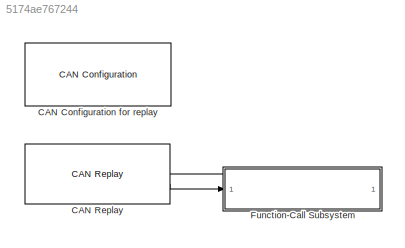
MODEL slx_5174ae767244
KIND model
CONFIG AbsTol = auto
CONFIG EnableMultiTasking = on
CONFIG FixedStep = Ts
CONFIG MaxStep = auto
CONFIG MinStep = auto
CONFIG RelTol = 1e-3
CONFIG SampleTimeConstraint = Unconstrained
CONFIG SolverName = FixedStepDiscrete
CONFIG StartTime = startTime
CONFIG StopTime = endTime
BLOCK [Reference] CAN Configuration for replay  REF=canlib/CAN Configuration
  SourceBlock = canlib/CAN Configuration
  SourceType = CAN Configuration
BLOCK [Reference] CAN Replay  REF=canlib/CAN Replay
  SourceBlock = canlib/CAN Replay
  SourceType = CAN Replay
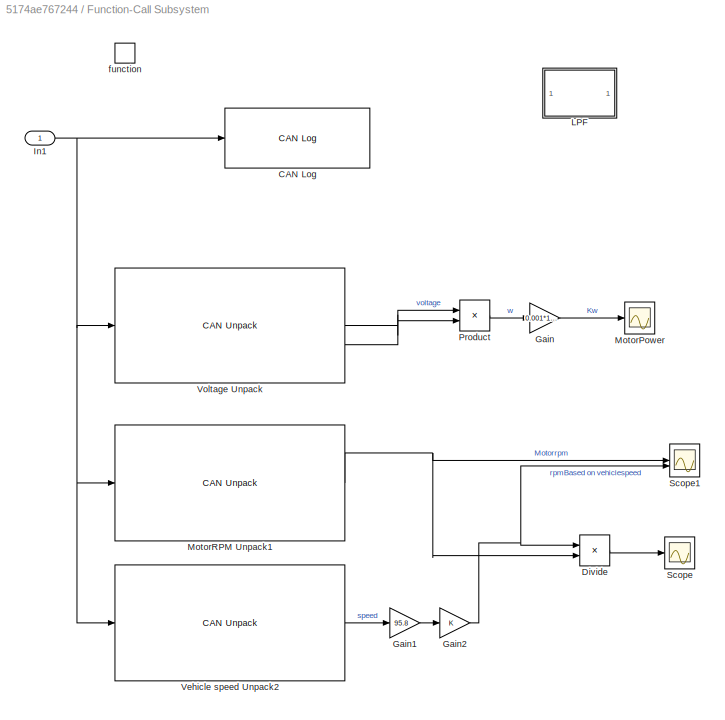
BLOCK [SubSystem] Function-Call Subsystem
  TreatAsAtomicUnit = on
BLOCK [Reference] Function-Call Subsystem/CAN Log  REF=canlib/CAN Log
  Commented = on
  SourceBlock = canlib/CAN Log
  SourceType = CAN Log
BLOCK [Product] Function-Call Subsystem/Divide
  Inputs = */
BLOCK [Gain] Function-Call Subsystem/Gain
  Gain = 0.001*1.732
BLOCK [Gain] Function-Call Subsystem/Gain1
  Gain = 95.8
BLOCK [Gain] Function-Call Subsystem/Gain2
BLOCK [Inport] Function-Call Subsystem/In1
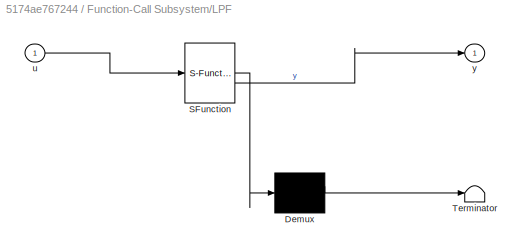
BLOCK [SubSystem] Function-Call Subsystem/LPF
  Commented = on
  ErrorFcn = Stateflow.Translate.translate
  PermitHierarchicalResolution = ExplicitOnly
  SFBlockType = MATLAB Function
  TreatAsAtomicUnit = on
BLOCK [Demux] Function-Call Subsystem/LPF/ Demux 
  Outputs = 1
BLOCK [S-Function] Function-Call Subsystem/LPF/ SFunction 
  EnableBusSupport = on
  FunctionName = sf_sfun
  PortCounts = [1 2]
  SFcnIsStateOwnerBlock = off
  SFunctionDeploymentMode = off
  Tag = Stateflow S-Function 2
BLOCK [Terminator] Function-Call Subsystem/LPF/ Terminator 
BLOCK [Inport] Function-Call Subsystem/LPF/u
BLOCK [Outport] Function-Call Subsystem/LPF/y
BLOCK [Scope] Function-Call Subsystem/MotorPower
  Floating = off
  NumInputPorts = 1
  ScopeSpecificationString = Simulink.scopes.TimeScopeBlockCfg('CurrentConfiguration', extmgr.ConfigurationSet(extmgr.Configuration('Core','General UI',true),extmgr.Configuration('Core','Source UI',true),extmgr.Configuration('Sources','WiredSimulink',true,'DataLoggingVariableName','ScopeData1'),extmgr.Configuration('Visuals','Time Domain',true,'SerializedDisplays',{struct('MinYLimReal','-33.40162','MaxYLimReal','300.61458','Y...<+1844ch>
BLOCK [Reference] Function-Call Subsystem/MotorRPM Unpack1  REF=canmsglib/CAN Unpack
  LibrarySourceBlock = canlib/CAN Unpack
  SourceBlock = canmsglib/CAN Unpack
  SourceType = CAN Unpack
BLOCK [Product] Function-Call Subsystem/Product
BLOCK [Scope] Function-Call Subsystem/Scope
  Floating = off
  NumInputPorts = 1
  ScopeSpecificationString = Simulink.scopes.TimeScopeBlockCfg('CurrentConfiguration', extmgr.ConfigurationSet(extmgr.Configuration('Core','General UI',true),extmgr.Configuration('Core','Source UI',true),extmgr.Configuration('Sources','WiredSimulink',true,'DataLoggingVariableName','ScopeData1'),extmgr.Configuration('Visuals','Time Domain',true,'SerializedDisplays',{struct('MinYLimReal','0.6787','MaxYLimReal','1.1493','YLabelR...<+1510ch>
BLOCK [Scope] Function-Call Subsystem/Scope1
  Floating = off
  NumInputPorts = 2
  ScopeSpecificationString = Simulink.scopes.TimeScopeBlockCfg('CurrentConfiguration', extmgr.ConfigurationSet(extmgr.Configuration('Core','General UI',true),extmgr.Configuration('Core','Source UI',true),extmgr.Configuration('Sources','WiredSimulink',true,'DataLoggingVariableName','ScopeData2'),extmgr.Configuration('Visuals','Time Domain',true,'SerializedDisplays',{struct('MinYLimReal','-1472.925','MaxYLimReal','13256.325','Y...<+1576ch>
BLOCK [Reference] Function-Call Subsystem/Vehicle speed Unpack2  REF=canmsglib/CAN Unpack
  LibrarySourceBlock = canlib/CAN Unpack
  SourceBlock = canmsglib/CAN Unpack
  SourceType = CAN Unpack
BLOCK [Reference] Function-Call Subsystem/Voltage Unpack  REF=canmsglib/CAN Unpack
  LibrarySourceBlock = canlib/CAN Unpack
  SourceBlock = canmsglib/CAN Unpack
  SourceType = CAN Unpack
BLOCK [TriggerPort] Function-Call Subsystem/function
  StatesWhenEnabling = held
  TriggerType = function-call
  VariantControl = (inherit)
LINE CAN Replay:1 -> Function-Call Subsystem:trigger
LINE CAN Replay:2 -> Function-Call Subsystem:1
LINE Function-Call Subsystem/Divide:1 -> Function-Call Subsystem/Scope:1
LINE Function-Call Subsystem/Gain1:1 -> Function-Call Subsystem/Gain2:1
NET Function-Call Subsystem/Gain2:1 -> Function-Call Subsystem/Divide:1, Function-Call Subsystem/Scope1:2
LINE Function-Call Subsystem/Gain:1 -> Function-Call Subsystem/MotorPower:1
NET Function-Call Subsystem/In1:1 -> Function-Call Subsystem/CAN Log:1, Function-Call Subsystem/MotorRPM Unpack1:1, Function-Call Subsystem/Vehicle speed Unpack2:1, Function-Call Subsystem/Voltage Unpack:1
NET Function-Call Subsystem/MotorRPM Unpack1:1 -> Function-Call Subsystem/Divide:2, Function-Call Subsystem/Scope1:1
LINE Function-Call Subsystem/Product:1 -> Function-Call Subsystem/Gain:1
LINE Function-Call Subsystem/Vehicle speed Unpack2:1 -> Function-Call Subsystem/Gain1:1
LINE Function-Call Subsystem/Voltage Unpack:1 -> Function-Call Subsystem/Product:1
LINE Function-Call Subsystem/Voltage Unpack:2 -> Function-Call Subsystem/Product:2
note: NET lines group one-source signal fan-out (src -> all destinations, sorted); 1:1 wires keep LINE
CHART Function-Call
Subsystem/LPF states=1 transitions=1
  STATE_LABEL 'eML_blk_kernel()'
  STATE_LABEL 'SCRIPT:\nfunction y = fcn(u)\npersistent lastOut\nif isempty(lastOut),lastOut=0;end\n\ny = u*0.02+lastOut*0.98;\nlastOut=y;\nend\n\n%This low pass filter is changed from transfer fucntion of first order low\n%pass filter. \n% rc=1/(2*pi*f_cutoff) filter coeffecient will be alpha=rc/(rc+Ts)\n\n'
CHART  states=0 transitions=0
